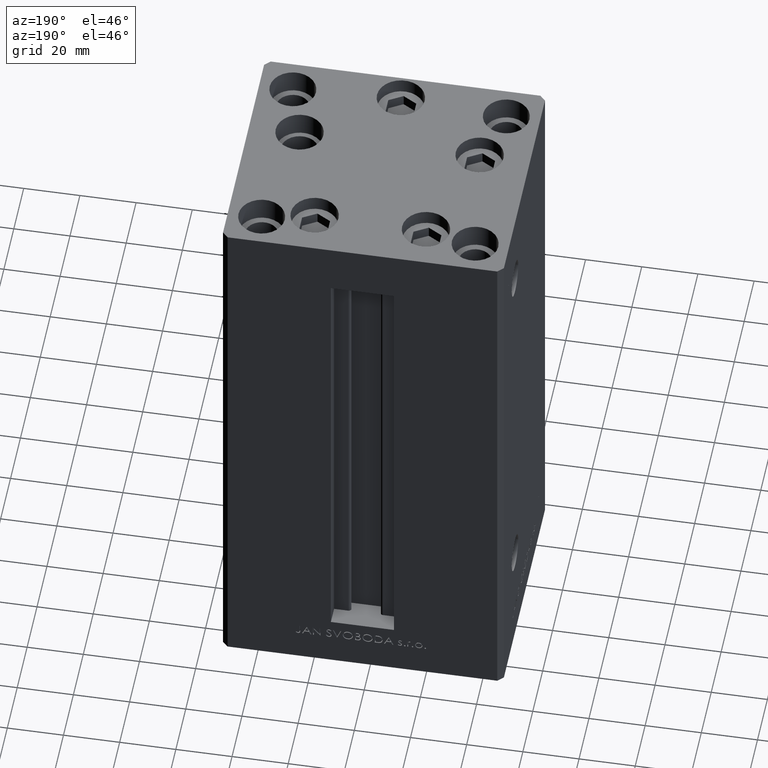
[diagram: clean part render]
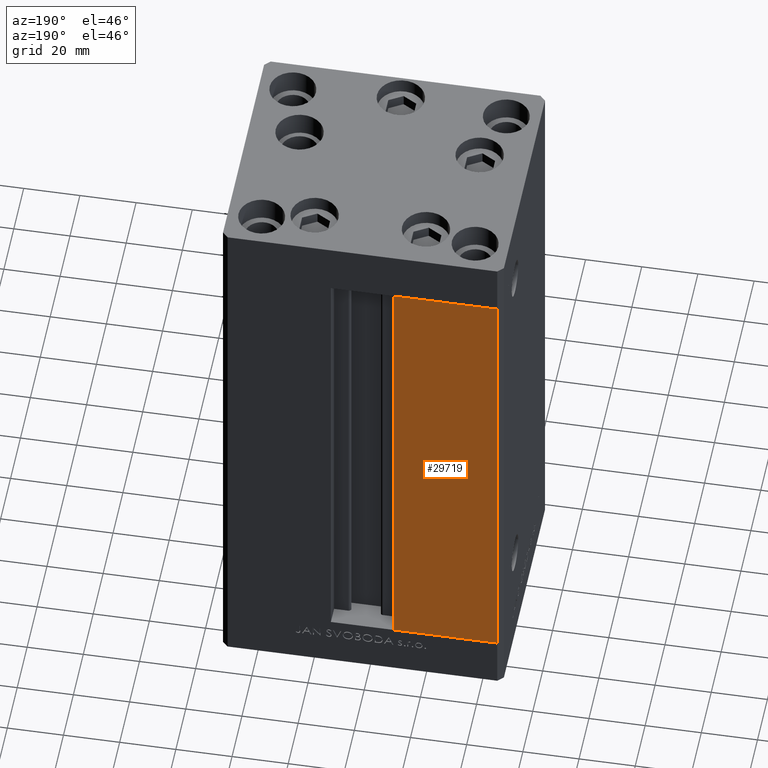
[diagram: same view with one face highlighted and labeled with its STEP entity id]
A machine part, auxiliary view. The second image highlights one B-rep face of the part: STEP entity #29719.
In plain terms, the highlighted planar face has unit normal (0, -1, 0).
Its self-contained STEP definition (entity closure, byte-faithful):
#209 = DIRECTION ( 'NONE',  ( 0.000000000000000000, -1.000000000000000000, 0.000000000000000000 ) ) ;
#555 = VECTOR ( 'NONE', #10132, 1000.000000000000000 ) ;
#3866 = CARTESIAN_POINT ( 'NONE',  ( -11.24999999999999822, 43.50000000000000000, 168.5000000000000000 ) ) ;
#4596 = VERTEX_POINT ( 'NONE', #3866 ) ;
#5189 = EDGE_LOOP ( 'NONE', ( #10672, #15102, #31910, #10653 ) ) ;
#10132 = DIRECTION ( 'NONE',  ( -0.000000000000000000, -0.000000000000000000, 1.000000000000000000 ) ) ;
#10653 = ORIENTED_EDGE ( 'NONE', *, *, #49917, .F. ) ;
#10672 = ORIENTED_EDGE ( 'NONE', *, *, #11325, .T. ) ;
#11325 = EDGE_CURVE ( 'NONE', #22960, #4596, #25487, .T. ) ;
#11510 = EDGE_CURVE ( 'NONE', #47928, #28479, #31290, .T. ) ;
#11905 = DIRECTION ( 'NONE',  ( 0.000000000000000000, -0.000000000000000000, -1.000000000000000000 ) ) ;
#14825 = CARTESIAN_POINT ( 'NONE',  ( -11.24999999999999822, 43.50000000000000000, 0.000000000000000000 ) ) ;
#15102 = ORIENTED_EDGE ( 'NONE', *, *, #48961, .F. ) ;
#17620 = CARTESIAN_POINT ( 'NONE',  ( -11.24999999999999822, 43.50000000000000000, 168.5000000000000000 ) ) ;
#17748 = LINE ( 'NONE', #44915, #555 ) ;
#19516 = PLANE ( 'NONE',  #39750 ) ;
#21421 = DIRECTION ( 'NONE',  ( 1.000000000000000000, 0.000000000000000000, 0.000000000000000000 ) ) ;
#22827 = LINE ( 'NONE', #41853, #40320 ) ;
#22960 = VERTEX_POINT ( 'NONE', #31322 ) ;
#23923 = CARTESIAN_POINT ( 'NONE',  ( -11.24999999999999822, 43.50000000000000000, 0.000000000000000000 ) ) ;
#25487 = LINE ( 'NONE', #17620, #29079 ) ;
#28479 = VERTEX_POINT ( 'NONE', #48571 ) ;
#29079 = VECTOR ( 'NONE', #21421, 1000.000000000000000 ) ;
#29719 = ADVANCED_FACE ( 'NONE', ( #38811 ), #19516, .F. ) ;
#31290 = LINE ( 'NONE', #23923, #49348 ) ;
#31322 = CARTESIAN_POINT ( 'NONE',  ( -48.00000000000000711, 43.50000000000000000, 168.5000000000000000 ) ) ;
#31910 = ORIENTED_EDGE ( 'NONE', *, *, #11510, .T. ) ;
#35016 = CARTESIAN_POINT ( 'NONE',  ( -11.24999999999999822, 43.50000000000000000, 168.5000000000000000 ) ) ;
#38295 = DIRECTION ( 'NONE',  ( -0.000000000000000000, -0.000000000000000000, -1.000000000000000000 ) ) ;
#38811 = FACE_OUTER_BOUND ( 'NONE', #5189, .T. ) ;
#39394 = DIRECTION ( 'NONE',  ( -1.000000000000000000, 0.000000000000000000, 0.000000000000000000 ) ) ;
#39750 = AXIS2_PLACEMENT_3D ( 'NONE', #35016, #209, #11905 ) ;
#40320 = VECTOR ( 'NONE', #38295, 1000.000000000000000 ) ;
#41853 = CARTESIAN_POINT ( 'NONE',  ( -48.00000000000000711, 43.50000000000000000, 168.5000000000000000 ) ) ;
#44915 = CARTESIAN_POINT ( 'NONE',  ( -11.24999999999999822, 43.50000000000000000, 0.000000000000000000 ) ) ;
#47928 = VERTEX_POINT ( 'NONE', #14825 ) ;
#48571 = CARTESIAN_POINT ( 'NONE',  ( -48.00000000000000711, 43.50000000000000000, 0.000000000000000000 ) ) ;
#48961 = EDGE_CURVE ( 'NONE', #47928, #4596, #17748, .T. ) ;
#49348 = VECTOR ( 'NONE', #39394, 1000.000000000000000 ) ;
#49917 = EDGE_CURVE ( 'NONE', #22960, #28479, #22827, .T. ) ;